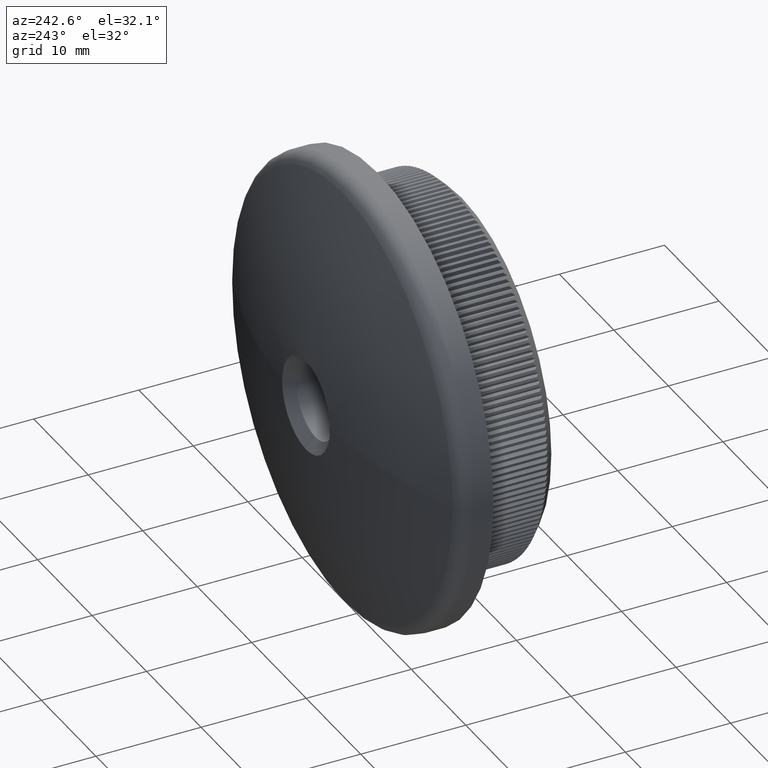
[diagram: clean part render]
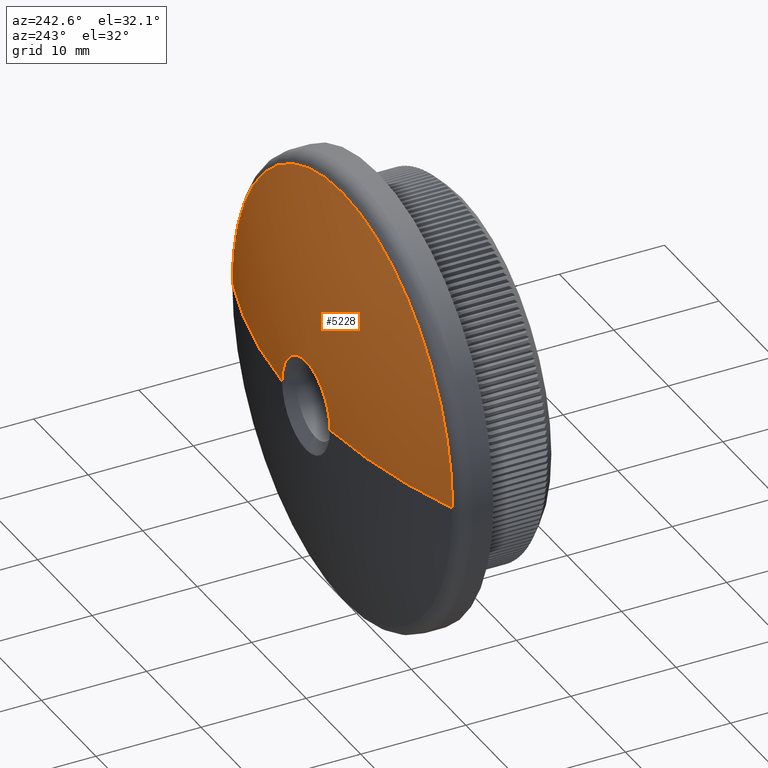
[diagram: same view with one face highlighted and labeled with its STEP entity id]
A machine part, auxiliary view. The second image highlights one B-rep face of the part: STEP entity #5228.
In plain terms, the highlighted spherical surface has radius 58.18 mm.
Its self-contained STEP definition (entity closure, byte-faithful):
#637 = CARTESIAN_POINT ( 'NONE',  ( 0.0000000000000000000, 11.37281375303810000, 0.0000000000000000000 ) ) ;
#961 = VERTEX_POINT ( 'NONE', #17499 ) ;
#1084 = EDGE_CURVE ( 'NONE', #961, #22165, #23875, .T. ) ;
#1541 = DIRECTION ( 'NONE',  ( 0.0000000000000000000, 0.0000000000000000000, 1.000000000000000000 ) ) ;
#2281 = DIRECTION ( 'NONE',  ( 0.0000000000000000000, 0.0000000000000000000, -1.000000000000000000 ) ) ;
#2909 = DIRECTION ( 'NONE',  ( 0.0000000000000000000, 0.0000000000000000000, -1.000000000000000000 ) ) ;
#4248 = ORIENTED_EDGE ( 'NONE', *, *, #21205, .F. ) ;
#5103 = CARTESIAN_POINT ( 'NONE',  ( -20.22134791813689200, 11.37281375303809700, 2.476400900239134100E-015 ) ) ;
#5198 = ORIENTED_EDGE ( 'NONE', *, *, #27366, .T. ) ;
#5228 = ADVANCED_FACE ( 'NONE', ( #29292 ), #17078, .T. ) ;
#6113 = CARTESIAN_POINT ( 'NONE',  ( 0.0000000000000000000, -43.18000000000007100, 0.0000000000000000000 ) ) ;
#6286 = DIRECTION ( 'NONE',  ( 1.224646799147353200E-016, -0.0000000000000000000, 1.000000000000000000 ) ) ;
#6616 = CARTESIAN_POINT ( 'NONE',  ( 0.0000000000000000000, 14.83418710009236300, 0.0000000000000000000 ) ) ;
#8515 = CARTESIAN_POINT ( 'NONE',  ( 0.0000000000000000000, 14.83418710009236300, 4.389361584043635700 ) ) ;
#8606 = CARTESIAN_POINT ( 'NONE',  ( 4.389361584043620600, 14.83418710009236300, 0.0000000000000000000 ) ) ;
#8705 = DIRECTION ( 'NONE',  ( 1.000000000000000000, 0.0000000000000000000, -1.224646799147353500E-016 ) ) ;
#8904 = CARTESIAN_POINT ( 'NONE',  ( 0.0000000000000000000, -43.18000000000007100, 0.0000000000000000000 ) ) ;
#9146 = ORIENTED_EDGE ( 'NONE', *, *, #20413, .T. ) ;
#9583 = AXIS2_PLACEMENT_3D ( 'NONE', #6616, #11194, #28205 ) ;
#9740 = CIRCLE ( 'NONE', #27445, 20.22134791813691000 ) ;
#10504 = DIRECTION ( 'NONE',  ( 0.0000000000000000000, 1.000000000000000000, 0.0000000000000000000 ) ) ;
#10528 = EDGE_CURVE ( 'NONE', #29708, #12942, #20200, .T. ) ;
#10753 = ORIENTED_EDGE ( 'NONE', *, *, #1084, .T. ) ;
#10903 = CIRCLE ( 'NONE', #23241, 58.18000000000007100 ) ;
#11194 = DIRECTION ( 'NONE',  ( -0.0000000000000000000, -1.000000000000000000, -0.0000000000000000000 ) ) ;
#11966 = DIRECTION ( 'NONE',  ( -1.000000000000000000, 0.0000000000000000000, 0.0000000000000000000 ) ) ;
#12864 = DIRECTION ( 'NONE',  ( 0.0000000000000000000, 0.0000000000000000000, -1.000000000000000000 ) ) ;
#12942 = VERTEX_POINT ( 'NONE', #8515 ) ;
#14913 = ORIENTED_EDGE ( 'NONE', *, *, #23560, .T. ) ;
#14991 = EDGE_LOOP ( 'NONE', ( #27045, #9146, #10753, #14913, #5198, #4248 ) ) ;
#17078 = SPHERICAL_SURFACE ( 'NONE', #21618, 58.18000000000007100 ) ;
#17499 = CARTESIAN_POINT ( 'NONE',  ( -4.389361584043620600, 14.83418710009236300, 1.506971330829536000E-015 ) ) ;
#19173 = VERTEX_POINT ( 'NONE', #19698 ) ;
#19698 = CARTESIAN_POINT ( 'NONE',  ( 20.22134791813689200, 11.37281375303809700, 0.0000000000000000000 ) ) ;
#20200 = CIRCLE ( 'NONE', #9583, 4.389361584043620600 ) ;
#20413 = EDGE_CURVE ( 'NONE', #12942, #961, #30185, .T. ) ;
#21205 = EDGE_CURVE ( 'NONE', #29708, #19173, #10903, .T. ) ;
#21618 = AXIS2_PLACEMENT_3D ( 'NONE', #6113, #1541, #22738 ) ;
#22165 = VERTEX_POINT ( 'NONE', #5103 ) ;
#22333 = AXIS2_PLACEMENT_3D ( 'NONE', #8904, #6286, #8705 ) ;
#22738 = DIRECTION ( 'NONE',  ( 1.000000000000000000, 0.0000000000000000000, 0.0000000000000000000 ) ) ;
#22896 = DIRECTION ( 'NONE',  ( 0.0000000000000000000, 0.0000000000000000000, -1.000000000000000000 ) ) ;
#23241 = AXIS2_PLACEMENT_3D ( 'NONE', #28862, #2281, #11966 ) ;
#23560 = EDGE_CURVE ( 'NONE', #22165, #26453, #9740, .T. ) ;
#23875 = CIRCLE ( 'NONE', #22333, 58.18000000000007100 ) ;
#24094 = CIRCLE ( 'NONE', #25478, 20.22134791813691000 ) ;
#25394 = CARTESIAN_POINT ( 'NONE',  ( 0.0000000000000000000, 14.83418710009236300, 0.0000000000000000000 ) ) ;
#25478 = AXIS2_PLACEMENT_3D ( 'NONE', #637, #26792, #2909 ) ;
#26453 = VERTEX_POINT ( 'NONE', #29920 ) ;
#26792 = DIRECTION ( 'NONE',  ( 0.0000000000000000000, 1.000000000000000000, 0.0000000000000000000 ) ) ;
#27011 = AXIS2_PLACEMENT_3D ( 'NONE', #25394, #27444, #22896 ) ;
#27045 = ORIENTED_EDGE ( 'NONE', *, *, #10528, .T. ) ;
#27366 = EDGE_CURVE ( 'NONE', #26453, #19173, #24094, .T. ) ;
#27444 = DIRECTION ( 'NONE',  ( -0.0000000000000000000, -1.000000000000000000, -0.0000000000000000000 ) ) ;
#27445 = AXIS2_PLACEMENT_3D ( 'NONE', #29245, #10504, #12864 ) ;
#28205 = DIRECTION ( 'NONE',  ( 0.0000000000000000000, 0.0000000000000000000, -1.000000000000000000 ) ) ;
#28862 = CARTESIAN_POINT ( 'NONE',  ( 0.0000000000000000000, -43.18000000000007100, 0.0000000000000000000 ) ) ;
#29245 = CARTESIAN_POINT ( 'NONE',  ( 0.0000000000000000000, 11.37281375303810000, 0.0000000000000000000 ) ) ;
#29292 = FACE_OUTER_BOUND ( 'NONE', #14991, .T. ) ;
#29708 = VERTEX_POINT ( 'NONE', #8606 ) ;
#29920 = CARTESIAN_POINT ( 'NONE',  ( 2.536326057215763400E-015, 11.37281375303810000, 20.22134791813691000 ) ) ;
#30185 = CIRCLE ( 'NONE', #27011, 4.389361584043620600 ) ;